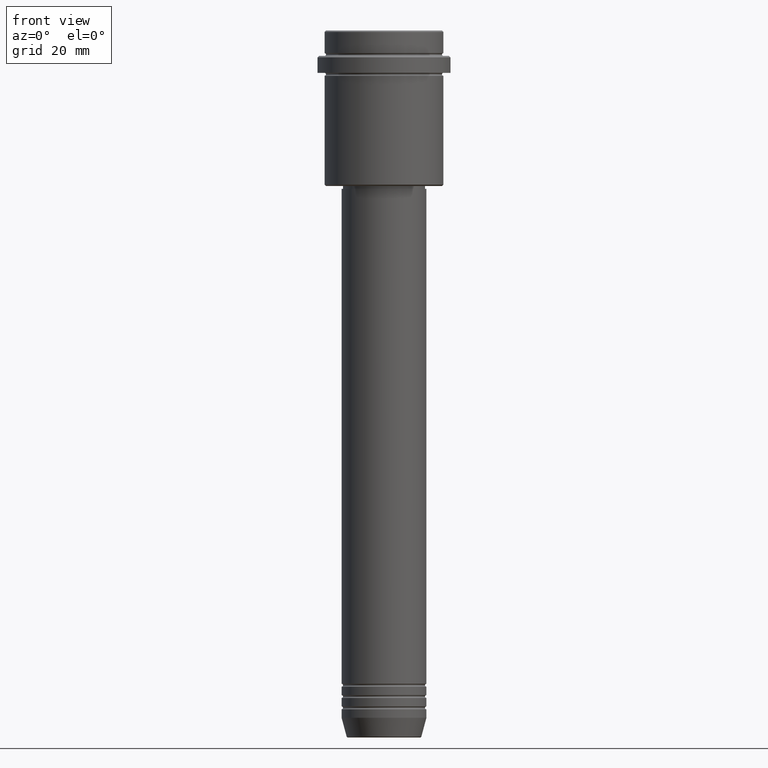
[diagram: clean part render]
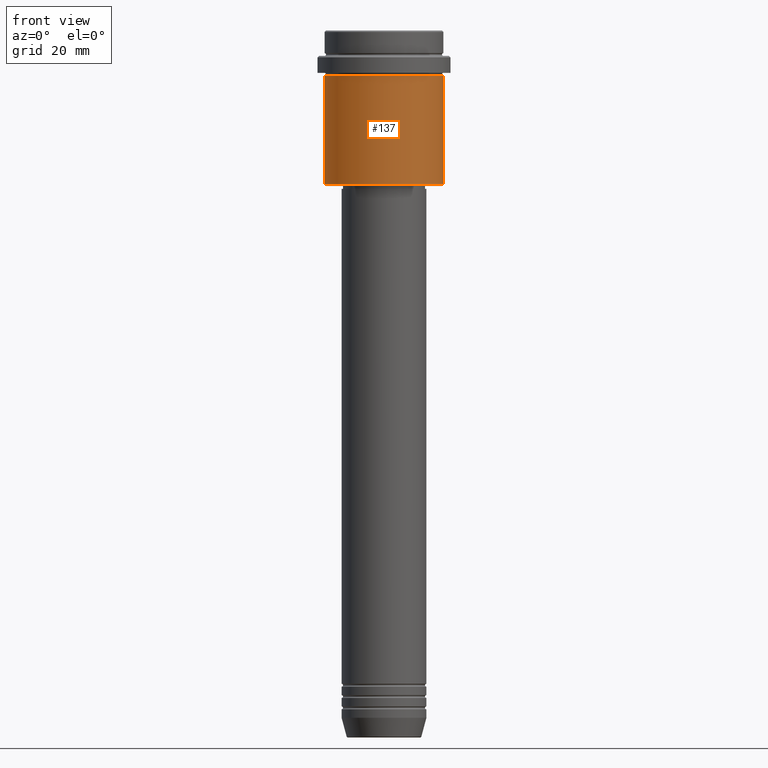
[diagram: same view with one face highlighted and labeled with its STEP entity id]
A machine part, front view. The second image highlights one B-rep face of the part: STEP entity #137.
In plain terms, the highlighted cylindrical surface (partial cylindrical patch) has radius 21 mm, axis along (-0, -0, 1).
Its self-contained STEP definition (entity closure, byte-faithful):
#21 = ORIENTED_EDGE ( 'NONE', *, *, #416, .T. ) ;
#23 = VERTEX_POINT ( 'NONE', #824 ) ;
#28 = AXIS2_PLACEMENT_3D ( 'NONE', #699, #35, #1136 ) ;
#35 = DIRECTION ( 'NONE',  ( -0.000000000000000000, -0.000000000000000000, 1.000000000000000000 ) ) ;
#51 = VERTEX_POINT ( 'NONE', #623 ) ;
#54 = ORIENTED_EDGE ( 'NONE', *, *, #441, .F. ) ;
#86 = VERTEX_POINT ( 'NONE', #304 ) ;
#91 = VERTEX_POINT ( 'NONE', #105 ) ;
#94 = DIRECTION ( 'NONE',  ( 1.000000000000000000, 0.000000000000000000, 0.000000000000000000 ) ) ;
#105 = CARTESIAN_POINT ( 'NONE',  ( 20.99999999999999645, 0.000000000000000000, -16.00000000000000355 ) ) ;
#132 = CYLINDRICAL_SURFACE ( 'NONE', #1190, 20.99999999999999645 ) ;
#137 = ADVANCED_FACE ( 'NONE', ( #1109 ), #132, .T. ) ;
#239 = ORIENTED_EDGE ( 'NONE', *, *, #756, .F. ) ;
#272 = DIRECTION ( 'NONE',  ( -1.000000000000000000, 0.000000000000000000, 0.000000000000000000 ) ) ;
#304 = CARTESIAN_POINT ( 'NONE',  ( -20.99999999999999645, 2.571758278209441267E-15, -54.49999999999995026 ) ) ;
#353 = CARTESIAN_POINT ( 'NONE',  ( 0.000000000000000000, 0.000000000000000000, 0.000000000000000000 ) ) ;
#405 = DIRECTION ( 'NONE',  ( -0.000000000000000000, -0.000000000000000000, 1.000000000000000000 ) ) ;
#416 = EDGE_CURVE ( 'NONE', #51, #91, #1051, .T. ) ;
#441 = EDGE_CURVE ( 'NONE', #86, #23, #606, .T. ) ;
#474 = CARTESIAN_POINT ( 'NONE',  ( 0.000000000000000000, 0.000000000000000000, -54.49999999999995026 ) ) ;
#490 = CIRCLE ( 'NONE', #1329, 20.99999999999999645 ) ;
#529 = DIRECTION ( 'NONE',  ( -0.000000000000000000, -0.000000000000000000, 1.000000000000000000 ) ) ;
#533 = CIRCLE ( 'NONE', #28, 20.99999999999999645 ) ;
#606 = LINE ( 'NONE', #1271, #806 ) ;
#623 = CARTESIAN_POINT ( 'NONE',  ( 20.99999999999999645, 0.000000000000000000, -54.49999999999995026 ) ) ;
#699 = CARTESIAN_POINT ( 'NONE',  ( 0.000000000000000000, 0.000000000000000000, -16.00000000000000355 ) ) ;
#756 = EDGE_CURVE ( 'NONE', #23, #91, #533, .T. ) ;
#806 = VECTOR ( 'NONE', #529, 1000.000000000000000 ) ;
#824 = CARTESIAN_POINT ( 'NONE',  ( -20.99999999999999645, 2.571758278209441267E-15, -16.00000000000000355 ) ) ;
#874 = VECTOR ( 'NONE', #405, 1000.000000000000000 ) ;
#908 = ORIENTED_EDGE ( 'NONE', *, *, #1179, .T. ) ;
#1051 = LINE ( 'NONE', #1381, #874 ) ;
#1109 = FACE_OUTER_BOUND ( 'NONE', #1262, .T. ) ;
#1136 = DIRECTION ( 'NONE',  ( 1.000000000000000000, 0.000000000000000000, 0.000000000000000000 ) ) ;
#1176 = DIRECTION ( 'NONE',  ( -0.000000000000000000, -0.000000000000000000, 1.000000000000000000 ) ) ;
#1179 = EDGE_CURVE ( 'NONE', #86, #51, #490, .T. ) ;
#1190 = AXIS2_PLACEMENT_3D ( 'NONE', #353, #1176, #94 ) ;
#1240 = DIRECTION ( 'NONE',  ( -0.000000000000000000, -0.000000000000000000, 1.000000000000000000 ) ) ;
#1262 = EDGE_LOOP ( 'NONE', ( #54, #908, #21, #239 ) ) ;
#1271 = CARTESIAN_POINT ( 'NONE',  ( -20.99999999999999645, 2.571758278209441267E-15, 0.000000000000000000 ) ) ;
#1329 = AXIS2_PLACEMENT_3D ( 'NONE', #474, #1240, #272 ) ;
#1381 = CARTESIAN_POINT ( 'NONE',  ( 20.99999999999999645, 0.000000000000000000, 0.000000000000000000 ) ) ;